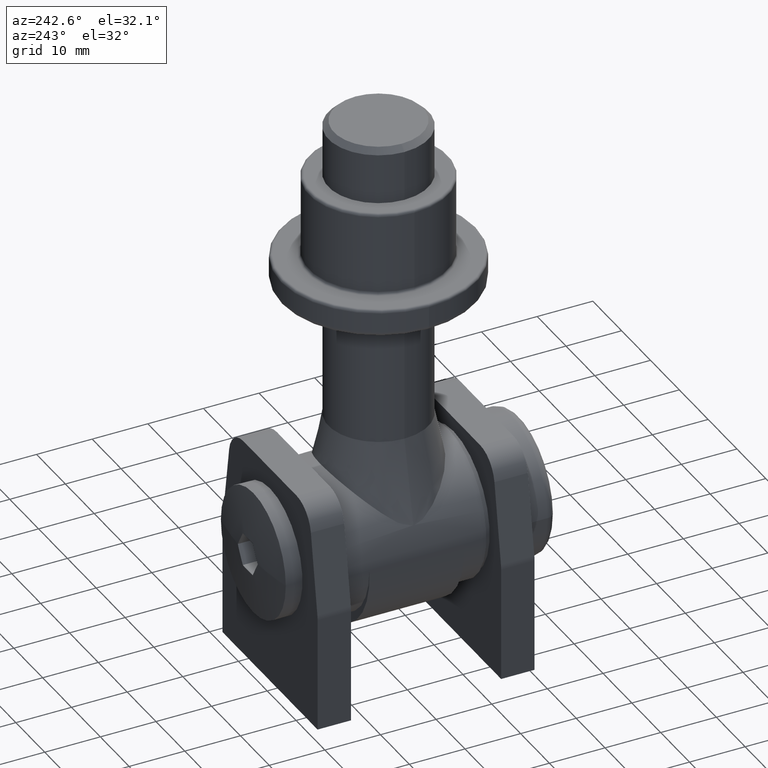
[diagram: clean part render]
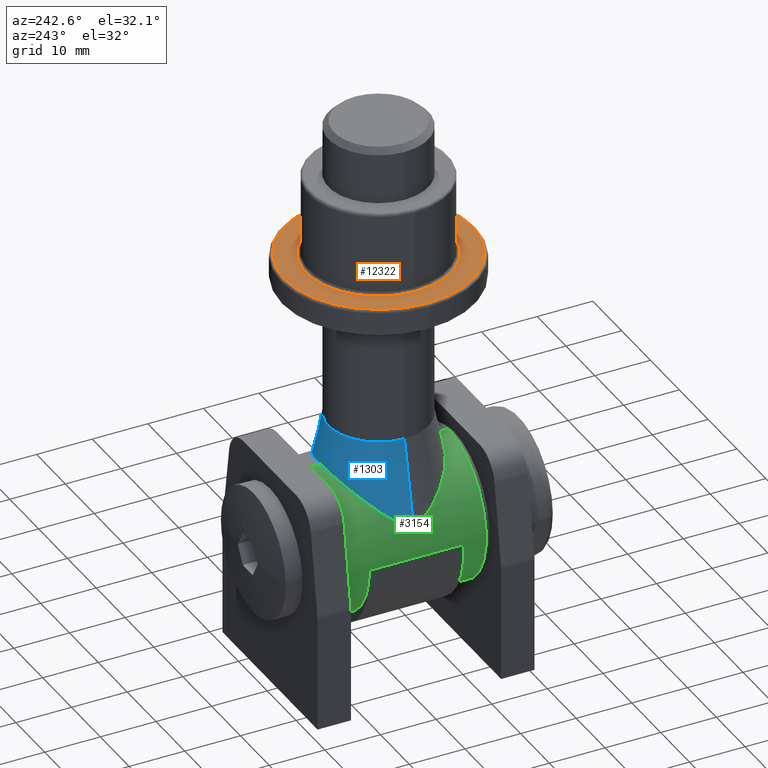
[diagram: same view with three faces highlighted in distinct colors, each labeled with its STEP entity id]
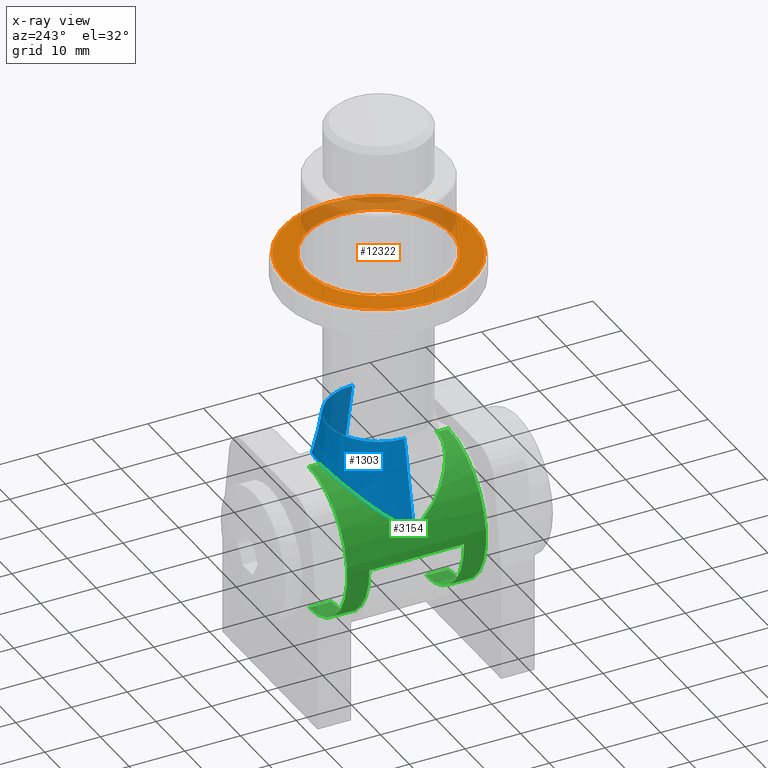
[diagram: x-ray of the same camera — body ghosted, the three highlighted faces saturated]
A machine part, auxiliary view with three faces highlighted in distinct colors.
The next image is the same camera in x-ray (body ghosted, the three faces saturated) — at least one of them is partly hidden behind the body in this view.
Their STEP definitions:

[orange] entity #12322 — the highlighted planar face has unit normal (0, 0, 1).
#330 = CARTESIAN_POINT ( 'NONE',  ( 17.00000000000000400, 0.0000000000000000000, 5.000000000000004400 ) ) ;
#1296 = CARTESIAN_POINT ( 'NONE',  ( 0.0000000000000000000, 0.0000000000000000000, 5.000000000000004400 ) ) ;
#1392 = AXIS2_PLACEMENT_3D ( 'NONE', #2784, #10298, #2669 ) ;
#1660 = DIRECTION ( 'NONE',  ( 0.0000000000000000000, 0.0000000000000000000, 1.000000000000000000 ) ) ;
#1789 = DIRECTION ( 'NONE',  ( 1.000000000000000000, 0.0000000000000000000, 0.0000000000000000000 ) ) ;
#2669 = DIRECTION ( 'NONE',  ( 1.000000000000000000, 0.0000000000000000000, -0.0000000000000000000 ) ) ;
#2784 = CARTESIAN_POINT ( 'NONE',  ( 0.0000000000000000000, 0.0000000000000000000, 5.000000000000004400 ) ) ;
#2905 = CIRCLE ( 'NONE', #11622, 17.00000000000000400 ) ;
#3436 = CIRCLE ( 'NONE', #7598, 13.00000000000000200 ) ;
#3442 = EDGE_CURVE ( 'NONE', #5131, #9874, #2905, .T. ) ;
#3497 = ORIENTED_EDGE ( 'NONE', *, *, #14237, .T. ) ;
#3849 = ORIENTED_EDGE ( 'NONE', *, *, #3442, .T. ) ;
#4452 = PLANE ( 'NONE',  #1392 ) ;
#4832 = ORIENTED_EDGE ( 'NONE', *, *, #5159, .T. ) ;
#5131 = VERTEX_POINT ( 'NONE', #330 ) ;
#5159 = EDGE_CURVE ( 'NONE', #9874, #5131, #6925, .T. ) ;
#6355 = DIRECTION ( 'NONE',  ( 1.000000000000000000, 0.0000000000000000000, 0.0000000000000000000 ) ) ;
#6809 = DIRECTION ( 'NONE',  ( 1.000000000000000000, 0.0000000000000000000, 0.0000000000000000000 ) ) ;
#6823 = EDGE_CURVE ( 'NONE', #12880, #8878, #3436, .T. ) ;
#6866 = EDGE_LOOP ( 'NONE', ( #3849, #4832 ) ) ;
#6925 = CIRCLE ( 'NONE', #12137, 17.00000000000000400 ) ;
#7532 = DIRECTION ( 'NONE',  ( -0.0000000000000000000, -0.0000000000000000000, -1.000000000000000000 ) ) ;
#7598 = AXIS2_PLACEMENT_3D ( 'NONE', #1296, #11055, #9867 ) ;
#7968 = CARTESIAN_POINT ( 'NONE',  ( 0.0000000000000000000, 0.0000000000000000000, 5.000000000000004400 ) ) ;
#8878 = VERTEX_POINT ( 'NONE', #15306 ) ;
#9867 = DIRECTION ( 'NONE',  ( 1.000000000000000000, 0.0000000000000000000, 0.0000000000000000000 ) ) ;
#9874 = VERTEX_POINT ( 'NONE', #14385 ) ;
#10040 = FACE_OUTER_BOUND ( 'NONE', #6866, .T. ) ;
#10298 = DIRECTION ( 'NONE',  ( 0.0000000000000000000, 0.0000000000000000000, 1.000000000000000000 ) ) ;
#10359 = CIRCLE ( 'NONE', #14340, 13.00000000000000200 ) ;
#10432 = CARTESIAN_POINT ( 'NONE',  ( 0.0000000000000000000, 0.0000000000000000000, 5.000000000000004400 ) ) ;
#11055 = DIRECTION ( 'NONE',  ( -0.0000000000000000000, -0.0000000000000000000, -1.000000000000000000 ) ) ;
#11622 = AXIS2_PLACEMENT_3D ( 'NONE', #7968, #11693, #1789 ) ;
#11693 = DIRECTION ( 'NONE',  ( 0.0000000000000000000, 0.0000000000000000000, 1.000000000000000000 ) ) ;
#12137 = AXIS2_PLACEMENT_3D ( 'NONE', #10432, #1660, #6809 ) ;
#12155 = EDGE_LOOP ( 'NONE', ( #15981, #3497 ) ) ;
#12322 = ADVANCED_FACE ( 'NONE', ( #10040, #13527 ), #4452, .T. ) ;
#12880 = VERTEX_POINT ( 'NONE', #15287 ) ;
#13527 = FACE_BOUND ( 'NONE', #12155, .T. ) ;
#13710 = CARTESIAN_POINT ( 'NONE',  ( 0.0000000000000000000, 0.0000000000000000000, 5.000000000000004400 ) ) ;
#14237 = EDGE_CURVE ( 'NONE', #8878, #12880, #10359, .T. ) ;
#14340 = AXIS2_PLACEMENT_3D ( 'NONE', #13710, #7532, #6355 ) ;
#14385 = CARTESIAN_POINT ( 'NONE',  ( -17.00000000000000400, 2.112515728529184900E-015, 5.000000000000004400 ) ) ;
#15287 = CARTESIAN_POINT ( 'NONE',  ( 13.00000000000000200, 0.0000000000000000000, 5.000000000000004400 ) ) ;
#15306 = CARTESIAN_POINT ( 'NONE',  ( -13.00000000000000200, 1.592040838891559300E-015, 5.000000000000004400 ) ) ;
#15981 = ORIENTED_EDGE ( 'NONE', *, *, #6823, .T. ) ;

[blue] entity #1303 — the highlighted conical surface has half-angle 12 deg.
#123 = EDGE_CURVE ( 'NONE', #9762, #574, #8620, .T. ) ;
#180 = CARTESIAN_POINT ( 'NONE',  ( 9.000000000000000000, 1.293748228990657500E-015, 19.99999999999999600 ) ) ;
#336 = CARTESIAN_POINT ( 'NONE',  ( -11.49175061079786500, 2.903089775996172700, 6.601071572575719400 ) ) ;
#391 = CARTESIAN_POINT ( 'NONE',  ( -11.61655651773590700, 2.584838584890882400, 6.377533033917743000 ) ) ;
#435 = FACE_OUTER_BOUND ( 'NONE', #1058, .T. ) ;
#443 = CARTESIAN_POINT ( 'NONE',  ( -8.893365662360226400, 6.774525724067019400, 9.844561867903211200 ) ) ;
#574 = VERTEX_POINT ( 'NONE', #1331 ) ;
#1058 = EDGE_LOOP ( 'NONE', ( #7290, #3743, #13817, #9920, #2423 ) ) ;
#1161 = CARTESIAN_POINT ( 'NONE',  ( 11.48781990896234700, 2.912459531914512100, 6.607832569976723700 ) ) ;
#1207 = AXIS2_PLACEMENT_3D ( 'NONE', #8250, #12024, #12124 ) ;
#1260 = CARTESIAN_POINT ( 'NONE',  ( 10.57680563853329900, 4.687384280959521200, 8.001171380402361400 ) ) ;
#1303 = ADVANCED_FACE ( 'NONE', ( #435 ), #9127, .T. ) ;
#1322 = CARTESIAN_POINT ( 'NONE',  ( 7.859484058657876900, 7.696969483484482000, 10.68801211823366300 ) ) ;
#1331 = CARTESIAN_POINT ( 'NONE',  ( -9.000000000000000000, 0.0000000000000000000, 19.99999999999999600 ) ) ;
#1615 = CARTESIAN_POINT ( 'NONE',  ( -7.859814488633110900, 7.696830599005054700, 10.68787478312199100 ) ) ;
#2423 = ORIENTED_EDGE ( 'NONE', *, *, #8995, .F. ) ;
#2514 = CARTESIAN_POINT ( 'NONE',  ( 11.92673454348287300, 1.571552621414711700, 5.774235112175424500 ) ) ;
#2563 = CARTESIAN_POINT ( 'NONE',  ( 6.047877226196088300, 8.906097663483297600, 11.81131012736362100 ) ) ;
#2624 = B_SPLINE_CURVE_WITH_KNOTS ( 'NONE', 3,
 ( #8750, #9137, #7840, #10384, #6564, #5491, #2763, #15164, #14038, #4137, #7794, #12739, #1615, #443, #13870, #10326, #5384, #6608, #6658, #336, #391, #5436, #2983, #10167, #4194, #6512, #8973, #10222 ),
 .UNSPECIFIED., .F., .F.,
 ( 4, 2, 2, 2, 2, 2, 2, 2, 2, 2, 2, 2, 2, 4 ),
 ( 0.05222592864754109500, 0.05466654568456969000, 0.05588685420308398700, 0.05710716272159828400, 0.05832747124011258800, 0.05954777975862688600, 0.06198839679565547300, 0.06442901383268406800, 0.06686963086971267600, 0.06808993938822696700, 0.06931024790674125700, 0.07053055642525556100, 0.07114071068451270600, 0.07175086494376985100 ),
 .UNSPECIFIED. ) ;
#2763 = CARTESIAN_POINT ( 'NONE',  ( -4.319565493271662500, 9.673706694231251300, 12.53190537982063000 ) ) ;
#2983 = CARTESIAN_POINT ( 'NONE',  ( -11.92868723471121800, 1.562855525102864900, 5.770154788472542200 ) ) ;
#3420 = VECTOR ( 'NONE', #4294, 1000.000000000000100 ) ;
#3743 = ORIENTED_EDGE ( 'NONE', *, *, #8182, .T. ) ;
#3792 = CARTESIAN_POINT ( 'NONE',  ( 0.8230408785925841200, 10.43475679127264900, 13.25000000000000400 ) ) ;
#3811 = LINE ( 'NONE', #11451, #3420 ) ;
#4137 = CARTESIAN_POINT ( 'NONE',  ( -6.047553059863945500, 8.888231756624467300, 11.79523974101254400 ) ) ;
#4194 = CARTESIAN_POINT ( 'NONE',  ( -12.05864392576899900, 0.8067804075094230400, 5.491242981476048600 ) ) ;
#4294 = DIRECTION ( 'NONE',  ( 0.2079116908177593100, 2.546183866652831100E-017, -0.9781476007338055800 ) ) ;
#4795 = CARTESIAN_POINT ( 'NONE',  ( -12.10664305115619000, 3.786254666022218900E-021, 5.384393562128570600 ) ) ;
#4942 = CARTESIAN_POINT ( 'NONE',  ( 11.83303006085650800, 1.921894070696874100, 5.966381446509473100 ) ) ;
#4991 = CARTESIAN_POINT ( 'NONE',  ( 4.314184033334060000, 9.675672551292464600, 12.53375530211281100 ) ) ;
#5037 = CARTESIAN_POINT ( 'NONE',  ( 8.890537647187622700, 6.777204848315213900, 9.847001221272719800 ) ) ;
#5089 = CARTESIAN_POINT ( 'NONE',  ( 2.797924488313849000, 10.12504310329740600, 12.95732587475329600 ) ) ;
#5384 = CARTESIAN_POINT ( 'NONE',  ( -10.57760393098527800, 4.686269550005519600, 8.000185221719110700 ) ) ;
#5436 = CARTESIAN_POINT ( 'NONE',  ( -11.83461110167774600, 1.915977937054853800, 5.963161326051015900 ) ) ;
#5491 = CARTESIAN_POINT ( 'NONE',  ( -3.952813657271866600, 9.802054703197024200, 12.65275731247150900 ) ) ;
#5867 = DIRECTION ( 'NONE',  ( -1.000000000000000000, 0.0000000000000000000, 0.0000000000000000000 ) ) ;
#6036 = EDGE_CURVE ( 'NONE', #8818, #9963, #7919, .T. ) ;
#6228 = CARTESIAN_POINT ( 'NONE',  ( 12.09645318755635300, 0.4101087223910179800, 5.407446227561047500 ) ) ;
#6377 = CARTESIAN_POINT ( 'NONE',  ( 12.05827137978807300, 0.8096099179262873400, 5.492062067574451600 ) ) ;
#6512 = CARTESIAN_POINT ( 'NONE',  ( -12.09671775895908400, 0.4062540104754608400, 5.406853268785775800 ) ) ;
#6564 = CARTESIAN_POINT ( 'NONE',  ( -3.195819190907472200, 10.02704409982448300, 12.86482580979796000 ) ) ;
#6608 = CARTESIAN_POINT ( 'NONE',  ( -11.06446719328639000, 3.819138791536556400, 7.295314102514105100 ) ) ;
#6658 = CARTESIAN_POINT ( 'NONE',  ( -11.21512296835490700, 3.521800369672998300, 7.060842358509259700 ) ) ;
#7290 = ORIENTED_EDGE ( 'NONE', *, *, #123, .F. ) ;
#7554 = CARTESIAN_POINT ( 'NONE',  ( 11.06296032631789000, 3.821975241020572500, 7.297580014072216200 ) ) ;
#7794 = CARTESIAN_POINT ( 'NONE',  ( -6.371546678343167800, 8.703777760650467600, 11.62297517426386600 ) ) ;
#7840 = CARTESIAN_POINT ( 'NONE',  ( -1.627427394574665300, 10.35436528618807400, 13.17390667386182900 ) ) ;
#7919 = B_SPLINE_CURVE_WITH_KNOTS ( 'NONE', 3,
 ( #11171, #8720, #6228, #6377, #8576, #2514, #4942, #8669, #1161, #9836, #7554, #1260, #11116, #8774, #5037, #1322, #13550, #2563, #12438, #4991, #14828, #13683, #5089, #11278, #3792, #12387 ),
 .UNSPECIFIED., .F., .F.,
 ( 4, 2, 2, 2, 2, 2, 2, 2, 2, 2, 2, 2, 4 ),
 ( 0.03266425480130214600, 0.03327555710899711400, 0.03388685941669208200, 0.03510946403208201800, 0.03633206864747195300, 0.03755467326286188900, 0.03999988249364175300, 0.04244509172442162400, 0.04489030095520149500, 0.04733551018598136000, 0.04855811480137128800, 0.04978071941676122400, 0.05222592864754109500 ),
 .UNSPECIFIED. ) ;
#8182 = EDGE_CURVE ( 'NONE', #9762, #8818, #3811, .T. ) ;
#8250 = CARTESIAN_POINT ( 'NONE',  ( 0.0000000000000000000, 0.0000000000000000000, 19.99999999999999600 ) ) ;
#8576 = CARTESIAN_POINT ( 'NONE',  ( 12.03002631820166400, 1.006849898841623500, 5.554056065950546500 ) ) ;
#8620 = CIRCLE ( 'NONE', #1207, 9.000000000000000000 ) ;
#8669 = CARTESIAN_POINT ( 'NONE',  ( 11.61282523603928900, 2.595191383297390500, 6.384402714709915800 ) ) ;
#8720 = CARTESIAN_POINT ( 'NONE',  ( 12.10664305115619200, 0.2070309658816547600, 5.384393562128571500 ) ) ;
#8750 = CARTESIAN_POINT ( 'NONE',  ( 1.622657007580528900E-015, 10.43475679127264800, 13.25000000000000200 ) ) ;
#8774 = CARTESIAN_POINT ( 'NONE',  ( 9.357436796250281600, 6.285408559409209900, 9.401824175999861300 ) ) ;
#8818 = VERTEX_POINT ( 'NONE', #9934 ) ;
#8973 = CARTESIAN_POINT ( 'NONE',  ( -12.10664305115619400, 0.2041607178623782400, 5.384393562128573200 ) ) ;
#8995 = EDGE_CURVE ( 'NONE', #574, #15480, #11495, .T. ) ;
#9127 = CONICAL_SURFACE ( 'NONE', #14059, 9.000000000000000000, 0.2094395102393195000 ) ;
#9137 = CARTESIAN_POINT ( 'NONE',  ( -0.8214951772545708900, 10.43475679127265100, 13.25000000000000500 ) ) ;
#9762 = VERTEX_POINT ( 'NONE', #180 ) ;
#9826 = CARTESIAN_POINT ( 'NONE',  ( -9.000000000000000000, 0.0000000000000000000, 19.99999999999999600 ) ) ;
#9836 = CARTESIAN_POINT ( 'NONE',  ( 11.21295659576610700, 3.526054461736721100, 7.064209928580991600 ) ) ;
#9920 = ORIENTED_EDGE ( 'NONE', *, *, #14285, .T. ) ;
#9934 = CARTESIAN_POINT ( 'NONE',  ( 12.10664305115619200, 1.748493282638719600E-015, 5.384393562128560800 ) ) ;
#9963 = VERTEX_POINT ( 'NONE', #13112 ) ;
#10167 = CARTESIAN_POINT ( 'NONE',  ( -12.03089942303414400, 1.001060367101144900, 5.552152774326419400 ) ) ;
#10222 = CARTESIAN_POINT ( 'NONE',  ( -12.10664305115619000, 3.786254666022218900E-021, 5.384393562128570600 ) ) ;
#10326 = CARTESIAN_POINT ( 'NONE',  ( -10.20679839300158400, 5.231802512468666700, 8.471859376096627900 ) ) ;
#10384 = CARTESIAN_POINT ( 'NONE',  ( -2.805369519048564800, 10.12339040397273100, 12.95576555459582100 ) ) ;
#11116 = CARTESIAN_POINT ( 'NONE',  ( 10.20373529351817500, 5.236426510614443000, 8.475830772971214300 ) ) ;
#11171 = CARTESIAN_POINT ( 'NONE',  ( 12.10664305115619200, 1.748493282638719600E-015, 5.384393562128560800 ) ) ;
#11278 = CARTESIAN_POINT ( 'NONE',  ( 1.624636226973390300, 10.35452249015881200, 13.17405625452674300 ) ) ;
#11451 = CARTESIAN_POINT ( 'NONE',  ( 9.000000000000000000, 1.102182119232617700E-015, 19.99999999999999600 ) ) ;
#11495 = LINE ( 'NONE', #9826, #13423 ) ;
#12024 = DIRECTION ( 'NONE',  ( 0.0000000000000000000, 0.0000000000000000000, 1.000000000000000000 ) ) ;
#12124 = DIRECTION ( 'NONE',  ( 1.000000000000000000, 0.0000000000000000000, 0.0000000000000000000 ) ) ;
#12387 = CARTESIAN_POINT ( 'NONE',  ( 1.622657007580528900E-015, 10.43475679127264800, 13.25000000000000200 ) ) ;
#12438 = CARTESIAN_POINT ( 'NONE',  ( 5.382153336248418200, 9.247686203966093600, 12.13151881884424700 ) ) ;
#12739 = CARTESIAN_POINT ( 'NONE',  ( -7.297235375127309400, 8.123185066940003200, 11.08257604455888800 ) ) ;
#13112 = CARTESIAN_POINT ( 'NONE',  ( 1.622657007580528900E-015, 10.43475679127264800, 13.25000000000000200 ) ) ;
#13423 = VECTOR ( 'NONE', #13430, 1000.000000000000100 ) ;
#13430 = DIRECTION ( 'NONE',  ( -0.2079116908177593100, 0.0000000000000000000, -0.9781476007338055800 ) ) ;
#13550 = CARTESIAN_POINT ( 'NONE',  ( 7.295562395751273900, 8.124911034194632000, 11.08416145667337600 ) ) ;
#13683 = CARTESIAN_POINT ( 'NONE',  ( 3.184539599339076200, 10.03008908591637800, 12.86769795924052100 ) ) ;
#13817 = ORIENTED_EDGE ( 'NONE', *, *, #6036, .T. ) ;
#13870 = CARTESIAN_POINT ( 'NONE',  ( -9.366277035828112200, 6.275266810331221900, 9.392762597439318700 ) ) ;
#14038 = CARTESIAN_POINT ( 'NONE',  ( -5.376985240004501100, 9.230539262203199900, 12.11563486939934000 ) ) ;
#14059 = AXIS2_PLACEMENT_3D ( 'NONE', #14397, #15663, #5867 ) ;
#14285 = EDGE_CURVE ( 'NONE', #9963, #15480, #2624, .T. ) ;
#14397 = CARTESIAN_POINT ( 'NONE',  ( 0.0000000000000000000, 0.0000000000000000000, 19.99999999999999600 ) ) ;
#14828 = CARTESIAN_POINT ( 'NONE',  ( 3.946418937678248400, 9.804255719160405400, 12.65482993952648400 ) ) ;
#15164 = CARTESIAN_POINT ( 'NONE',  ( -5.031655238396223400, 9.387953859221665800, 12.26334962648298600 ) ) ;
#15480 = VERTEX_POINT ( 'NONE', #4795 ) ;
#15663 = DIRECTION ( 'NONE',  ( 0.0000000000000000000, 0.0000000000000000000, -1.000000000000000000 ) ) ;

[green] entity #3154 — the highlighted cylindrical surface (partial cylindrical patch) has radius 13.25 mm, axis along (-0, -1, -0).
#49 = CARTESIAN_POINT ( 'NONE',  ( -3.198687775559332800, -10.02623938511667100, 12.86406699088285800 ) ) ;
#150 = CARTESIAN_POINT ( 'NONE',  ( 1.622657008870243300E-015, 12.50000000000000000, 13.25000000000000200 ) ) ;
#247 = EDGE_CURVE ( 'NONE', #8107, #11517, #5172, .T. ) ;
#276 = AXIS2_PLACEMENT_3D ( 'NONE', #11374, #5240, #13828 ) ;
#336 = CARTESIAN_POINT ( 'NONE',  ( -11.49175061079786500, 2.903089775996172700, 6.601071572575719400 ) ) ;
#382 = DIRECTION ( 'NONE',  ( -0.0000000000000000000, -1.000000000000000000, -0.0000000000000000000 ) ) ;
#391 = CARTESIAN_POINT ( 'NONE',  ( -11.61655651773590700, 2.584838584890882400, 6.377533033917743000 ) ) ;
#443 = CARTESIAN_POINT ( 'NONE',  ( -8.893365662360226400, 6.774525724067019400, 9.844561867903211200 ) ) ;
#467 = VECTOR ( 'NONE', #3658, 1000.000000000000000 ) ;
#540 = CARTESIAN_POINT ( 'NONE',  ( 0.0000000000000000000, 12.50000000000000000, 0.0000000000000000000 ) ) ;
#627 = EDGE_LOOP ( 'NONE', ( #15768, #2473, #713, #9008, #8556, #3760, #15219, #11543, #13070, #14472, #3065 ) ) ;
#713 = ORIENTED_EDGE ( 'NONE', *, *, #9841, .T. ) ;
#961 = DIRECTION ( 'NONE',  ( 0.0000000000000000000, 0.0000000000000000000, 1.000000000000000000 ) ) ;
#1169 = CARTESIAN_POINT ( 'NONE',  ( -0.8126159729275684900, -10.41509996114150400, 13.23140376917632800 ) ) ;
#1189 = DIRECTION ( 'NONE',  ( 0.0000000000000000000, 1.000000000000000000, -0.0000000000000000000 ) ) ;
#1385 = CARTESIAN_POINT ( 'NONE',  ( 0.0000000000000000000, -8.500000000000000000, -13.25000000000000200 ) ) ;
#1386 = DIRECTION ( 'NONE',  ( -0.0000000000000000000, -1.000000000000000000, -0.0000000000000000000 ) ) ;
#1615 = CARTESIAN_POINT ( 'NONE',  ( -7.859814488633110900, 7.696830599005054700, 10.68787478312199100 ) ) ;
#2473 = ORIENTED_EDGE ( 'NONE', *, *, #247, .F. ) ;
#2521 = CARTESIAN_POINT ( 'NONE',  ( -0.4057545363931444600, -10.43475679127265100, 13.25000000000000500 ) ) ;
#2624 = B_SPLINE_CURVE_WITH_KNOTS ( 'NONE', 3,
 ( #8750, #9137, #7840, #10384, #6564, #5491, #2763, #15164, #14038, #4137, #7794, #12739, #1615, #443, #13870, #10326, #5384, #6608, #6658, #336, #391, #5436, #2983, #10167, #4194, #6512, #8973, #10222 ),
 .UNSPECIFIED., .F., .F.,
 ( 4, 2, 2, 2, 2, 2, 2, 2, 2, 2, 2, 2, 2, 4 ),
 ( 0.05222592864754109500, 0.05466654568456969000, 0.05588685420308398700, 0.05710716272159828400, 0.05832747124011258800, 0.05954777975862688600, 0.06198839679565547300, 0.06442901383268406800, 0.06686963086971267600, 0.06808993938822696700, 0.06931024790674125700, 0.07053055642525556100, 0.07114071068451270600, 0.07175086494376985100 ),
 .UNSPECIFIED. ) ;
#2763 = CARTESIAN_POINT ( 'NONE',  ( -4.319565493271662500, 9.673706694231251300, 12.53190537982063000 ) ) ;
#2983 = CARTESIAN_POINT ( 'NONE',  ( -11.92868723471121800, 1.562855525102864900, 5.770154788472542200 ) ) ;
#3065 = ORIENTED_EDGE ( 'NONE', *, *, #14285, .F. ) ;
#3095 = EDGE_CURVE ( 'NONE', #12560, #4292, #3129, .T. ) ;
#3129 = LINE ( 'NONE', #13863, #13549 ) ;
#3154 = ADVANCED_FACE ( 'NONE', ( #12597 ), #12558, .T. ) ;
#3658 = DIRECTION ( 'NONE',  ( -0.0000000000000000000, -1.000000000000000000, -0.0000000000000000000 ) ) ;
#3751 = CARTESIAN_POINT ( 'NONE',  ( 1.622665547391102900E-015, -10.43475679127264800, 13.25000000000000200 ) ) ;
#3760 = ORIENTED_EDGE ( 'NONE', *, *, #6053, .F. ) ;
#3796 = VERTEX_POINT ( 'NONE', #9519 ) ;
#4064 = CARTESIAN_POINT ( 'NONE',  ( 0.0000000000000000000, -12.50000000000000000, -13.25000000000000200 ) ) ;
#4113 = DIRECTION ( 'NONE',  ( 0.0000000000000000000, 0.0000000000000000000, 1.000000000000000000 ) ) ;
#4137 = CARTESIAN_POINT ( 'NONE',  ( -6.047553059863945500, 8.888231756624467300, 11.79523974101254400 ) ) ;
#4194 = CARTESIAN_POINT ( 'NONE',  ( -12.05864392576899900, 0.8067804075094230400, 5.491242981476048600 ) ) ;
#4252 = CIRCLE ( 'NONE', #276, 13.25000000000000200 ) ;
#4292 = VERTEX_POINT ( 'NONE', #4064 ) ;
#4454 = AXIS2_PLACEMENT_3D ( 'NONE', #13182, #8382, #961 ) ;
#4795 = CARTESIAN_POINT ( 'NONE',  ( -12.10664305115619000, 3.786254666022218900E-021, 5.384393562128570600 ) ) ;
#4821 = CARTESIAN_POINT ( 'NONE',  ( -1.628619951296856900, -10.33525600873352700, 13.15591074295764400 ) ) ;
#4841 = CARTESIAN_POINT ( 'NONE',  ( -11.07168699399298400, -3.805288723428093000, 7.284315264579817000 ) ) ;
#4917 = DIRECTION ( 'NONE',  ( -0.0000000000000000000, -1.000000000000000000, -0.0000000000000000000 ) ) ;
#4948 = CARTESIAN_POINT ( 'NONE',  ( -11.92839697483494100, -1.564471786915114600, 5.770774725554457700 ) ) ;
#4960 = CARTESIAN_POINT ( 'NONE',  ( -12.10664305115618700, -0.2035733746244421700, 5.384393562128575900 ) ) ;
#4998 = CARTESIAN_POINT ( 'NONE',  ( -2.814202223252901400, -10.12135271185618100, 12.95384196335082500 ) ) ;
#5172 = CIRCLE ( 'NONE', #7051, 13.25000000000000200 ) ;
#5240 = DIRECTION ( 'NONE',  ( 0.0000000000000000000, 1.000000000000000000, -0.0000000000000000000 ) ) ;
#5325 = DIRECTION ( 'NONE',  ( -0.0000000000000000000, -1.000000000000000000, -0.0000000000000000000 ) ) ;
#5384 = CARTESIAN_POINT ( 'NONE',  ( -10.57760393098527800, 4.686269550005519600, 8.000185221719110700 ) ) ;
#5436 = CARTESIAN_POINT ( 'NONE',  ( -11.83461110167774600, 1.915977937054853800, 5.963161326051015900 ) ) ;
#5491 = CARTESIAN_POINT ( 'NONE',  ( -3.952813657271866600, 9.802054703197024200, 12.65275731247150900 ) ) ;
#5589 = VECTOR ( 'NONE', #1386, 1000.000000000000000 ) ;
#5645 = VERTEX_POINT ( 'NONE', #7789 ) ;
#5997 = CARTESIAN_POINT ( 'NONE',  ( 0.0000000000000000000, 12.50000000000000000, -13.25000000000000200 ) ) ;
#6053 = EDGE_CURVE ( 'NONE', #12560, #11024, #15386, .T. ) ;
#6082 = CARTESIAN_POINT ( 'NONE',  ( -6.062792856971070100, -8.897462501591984800, 11.80325034554363100 ) ) ;
#6131 = CARTESIAN_POINT ( 'NONE',  ( -2.029510768886989800, -10.27582212581316400, 13.09972678355552700 ) ) ;
#6183 = CARTESIAN_POINT ( 'NONE',  ( -5.400130037512961500, -9.239555980172445600, 12.12388915026866300 ) ) ;
#6475 = AXIS2_PLACEMENT_3D ( 'NONE', #10249, #11496, #4113 ) ;
#6512 = CARTESIAN_POINT ( 'NONE',  ( -12.09671775895908400, 0.4062540104754608400, 5.406853268785775800 ) ) ;
#6564 = CARTESIAN_POINT ( 'NONE',  ( -3.195819190907472200, 10.02704409982448300, 12.86482580979796000 ) ) ;
#6608 = CARTESIAN_POINT ( 'NONE',  ( -11.06446719328639000, 3.819138791536556400, 7.295314102514105100 ) ) ;
#6658 = CARTESIAN_POINT ( 'NONE',  ( -11.21512296835490700, 3.521800369672998300, 7.060842358509259700 ) ) ;
#7051 = AXIS2_PLACEMENT_3D ( 'NONE', #8602, #1189, #9868 ) ;
#7260 = CARTESIAN_POINT ( 'NONE',  ( -11.61956214107666900, -2.576507255824193700, 6.371999717191863900 ) ) ;
#7459 = CARTESIAN_POINT ( 'NONE',  ( -10.74868733039374600, -4.382503734710497600, 7.753013764993374600 ) ) ;
#7789 = CARTESIAN_POINT ( 'NONE',  ( 1.622657008870243300E-015, -12.50000000000000000, 13.25000000000000200 ) ) ;
#7794 = CARTESIAN_POINT ( 'NONE',  ( -6.371546678343167800, 8.703777760650467600, 11.62297517426386600 ) ) ;
#7824 = DIRECTION ( 'NONE',  ( -0.0000000000000000000, -1.000000000000000000, -0.0000000000000000000 ) ) ;
#7833 = DIRECTION ( 'NONE',  ( 0.0000000000000000000, 0.0000000000000000000, -1.000000000000000000 ) ) ;
#7840 = CARTESIAN_POINT ( 'NONE',  ( -1.627427394574665300, 10.35436528618807400, 13.17390667386182900 ) ) ;
#7862 = VECTOR ( 'NONE', #4917, 1000.000000000000000 ) ;
#8107 = VERTEX_POINT ( 'NONE', #5997 ) ;
#8326 = VERTEX_POINT ( 'NONE', #12432 ) ;
#8382 = DIRECTION ( 'NONE',  ( 0.0000000000000000000, 1.000000000000000000, -0.0000000000000000000 ) ) ;
#8540 = CARTESIAN_POINT ( 'NONE',  ( -10.20292765110521100, -5.213681878591569500, 8.458879440978837000 ) ) ;
#8556 = ORIENTED_EDGE ( 'NONE', *, *, #14140, .T. ) ;
#8583 = CARTESIAN_POINT ( 'NONE',  ( -7.298274031977630500, -8.122499500798671300, 11.08193900453688800 ) ) ;
#8602 = CARTESIAN_POINT ( 'NONE',  ( 0.0000000000000000000, 12.50000000000000000, 0.0000000000000000000 ) ) ;
#8675 = CARTESIAN_POINT ( 'NONE',  ( -7.872711115556730200, -7.686626841636107000, 10.67845796190247900 ) ) ;
#8746 = CARTESIAN_POINT ( 'NONE',  ( -12.10664305115619000, 3.786254666022218900E-021, 5.384393562128570600 ) ) ;
#8750 = CARTESIAN_POINT ( 'NONE',  ( 1.622657007580528900E-015, 10.43475679127264800, 13.25000000000000200 ) ) ;
#8815 = LINE ( 'NONE', #10882, #7862 ) ;
#8973 = CARTESIAN_POINT ( 'NONE',  ( -12.10664305115619400, 0.2041607178623782400, 5.384393562128573200 ) ) ;
#8977 = CIRCLE ( 'NONE', #4454, 13.25000000000000200 ) ;
#9008 = ORIENTED_EDGE ( 'NONE', *, *, #12716, .T. ) ;
#9038 = VECTOR ( 'NONE', #7824, 1000.000000000000000 ) ;
#9137 = CARTESIAN_POINT ( 'NONE',  ( -0.8214951772545708900, 10.43475679127265100, 13.25000000000000500 ) ) ;
#9144 = B_SPLINE_CURVE_WITH_KNOTS ( 'NONE', 3,
 ( #8746, #4960, #13558, #12205, #9791, #4948, #12343, #7260, #14620, #14834, #4841, #7459, #15984, #8540, #15879, #13442, #9935, #8675, #8583, #6082, #6183, #11083, #14673, #49, #4998, #6131, #4821, #1169, #2521, #3751 ),
 .UNSPECIFIED., .F., .F.,
 ( 4, 2, 2, 2, 2, 2, 2, 2, 2, 2, 2, 2, 2, 2, 4 ),
 ( 0.07175086494376985100, 0.07235926387035561400, 0.07296766279694137700, 0.07418446065011288800, 0.07540125850328441300, 0.07661805635645593800, 0.07783485420962744900, 0.07905165206279897400, 0.08148524776914201100, 0.08391884347548506100, 0.08635243918182809700, 0.08756923703499962200, 0.08878603488817113400, 0.09000283274134265900, 0.09121963059451418400 ),
 .UNSPECIFIED. ) ;
#9519 = CARTESIAN_POINT ( 'NONE',  ( 0.0000000000000000000, 8.500000000000000000, -13.25000000000000200 ) ) ;
#9578 = VERTEX_POINT ( 'NONE', #13727 ) ;
#9791 = CARTESIAN_POINT ( 'NONE',  ( -12.03106365642473100, -1.000147233795175100, 5.551802061100825200 ) ) ;
#9841 = EDGE_CURVE ( 'NONE', #8107, #3796, #14941, .T. ) ;
#9868 = DIRECTION ( 'NONE',  ( 0.0000000000000000000, 0.0000000000000000000, 1.000000000000000000 ) ) ;
#9935 = CARTESIAN_POINT ( 'NONE',  ( -8.907129285168011300, -6.760904764211219700, 9.832196735746872900 ) ) ;
#9963 = VERTEX_POINT ( 'NONE', #13112 ) ;
#10167 = CARTESIAN_POINT ( 'NONE',  ( -12.03089942303414400, 1.001060367101144900, 5.552152774326419400 ) ) ;
#10222 = CARTESIAN_POINT ( 'NONE',  ( -12.10664305115619000, 3.786254666022218900E-021, 5.384393562128570600 ) ) ;
#10249 = CARTESIAN_POINT ( 'NONE',  ( 0.0000000000000000000, -8.500000000000000000, 0.0000000000000000000 ) ) ;
#10326 = CARTESIAN_POINT ( 'NONE',  ( -10.20679839300158400, 5.231802512468666700, 8.471859376096627900 ) ) ;
#10384 = CARTESIAN_POINT ( 'NONE',  ( -2.805369519048564800, 10.12339040397273100, 12.95576555459582100 ) ) ;
#10387 = CARTESIAN_POINT ( 'NONE',  ( -13.25000000000000200, -8.500000000000000000, 3.816391647148975600E-014 ) ) ;
#10452 = EDGE_CURVE ( 'NONE', #15480, #9578, #9144, .T. ) ;
#10882 = CARTESIAN_POINT ( 'NONE',  ( -13.25000000000000200, 8.500000000000000000, 3.816391647148975600E-014 ) ) ;
#11024 = VERTEX_POINT ( 'NONE', #10387 ) ;
#11083 = CARTESIAN_POINT ( 'NONE',  ( -4.324523083534878700, -9.671979882943876600, 12.53027925616532600 ) ) ;
#11374 = CARTESIAN_POINT ( 'NONE',  ( 0.0000000000000000000, 8.500000000000000000, 0.0000000000000000000 ) ) ;
#11496 = DIRECTION ( 'NONE',  ( 0.0000000000000000000, 1.000000000000000000, -0.0000000000000000000 ) ) ;
#11517 = VERTEX_POINT ( 'NONE', #150 ) ;
#11543 = ORIENTED_EDGE ( 'NONE', *, *, #14470, .T. ) ;
#12163 = CARTESIAN_POINT ( 'NONE',  ( 0.0000000000000000000, 12.50000000000000000, -13.25000000000000200 ) ) ;
#12205 = CARTESIAN_POINT ( 'NONE',  ( -12.05867148929565100, -0.8060602706229292900, 5.491179273554354100 ) ) ;
#12343 = CARTESIAN_POINT ( 'NONE',  ( -11.83605501283848600, -1.910642347487917900, 5.960235438243725700 ) ) ;
#12432 = CARTESIAN_POINT ( 'NONE',  ( -13.25000000000000200, 8.500000000000000000, 3.903127820947816000E-014 ) ) ;
#12558 = CYLINDRICAL_SURFACE ( 'NONE', #15853, 13.25000000000000200 ) ;
#12560 = VERTEX_POINT ( 'NONE', #1385 ) ;
#12597 = FACE_OUTER_BOUND ( 'NONE', #627, .T. ) ;
#12716 = EDGE_CURVE ( 'NONE', #3796, #8326, #4252, .T. ) ;
#12739 = CARTESIAN_POINT ( 'NONE',  ( -7.297235375127309400, 8.123185066940003200, 11.08257604455888800 ) ) ;
#12895 = CARTESIAN_POINT ( 'NONE',  ( 1.622657008870243300E-015, 12.50000000000000000, 13.25000000000000200 ) ) ;
#13070 = ORIENTED_EDGE ( 'NONE', *, *, #13438, .F. ) ;
#13112 = CARTESIAN_POINT ( 'NONE',  ( 1.622657007580528900E-015, 10.43475679127264800, 13.25000000000000200 ) ) ;
#13182 = CARTESIAN_POINT ( 'NONE',  ( 0.0000000000000000000, -12.50000000000000000, 0.0000000000000000000 ) ) ;
#13305 = LINE ( 'NONE', #12895, #9038 ) ;
#13355 = EDGE_CURVE ( 'NONE', #11517, #9963, #14252, .T. ) ;
#13438 = EDGE_CURVE ( 'NONE', #9578, #5645, #13305, .T. ) ;
#13442 = CARTESIAN_POINT ( 'NONE',  ( -9.372671544730188500, -6.268217391244646400, 9.386422063061278500 ) ) ;
#13549 = VECTOR ( 'NONE', #5325, 1000.000000000000000 ) ;
#13558 = CARTESIAN_POINT ( 'NONE',  ( -12.09643586724653700, -0.4096467203791875900, 5.407480671316010400 ) ) ;
#13727 = CARTESIAN_POINT ( 'NONE',  ( 1.622665547391102900E-015, -10.43475679127264800, 13.25000000000000200 ) ) ;
#13828 = DIRECTION ( 'NONE',  ( 0.0000000000000000000, 0.0000000000000000000, 1.000000000000000000 ) ) ;
#13863 = CARTESIAN_POINT ( 'NONE',  ( 0.0000000000000000000, 12.50000000000000000, -13.25000000000000200 ) ) ;
#13870 = CARTESIAN_POINT ( 'NONE',  ( -9.366277035828112200, 6.275266810331221900, 9.392762597439318700 ) ) ;
#14038 = CARTESIAN_POINT ( 'NONE',  ( -5.376985240004501100, 9.230539262203199900, 12.11563486939934000 ) ) ;
#14140 = EDGE_CURVE ( 'NONE', #8326, #11024, #8815, .T. ) ;
#14252 = LINE ( 'NONE', #14729, #5589 ) ;
#14285 = EDGE_CURVE ( 'NONE', #9963, #15480, #2624, .T. ) ;
#14470 = EDGE_CURVE ( 'NONE', #4292, #5645, #8977, .T. ) ;
#14472 = ORIENTED_EDGE ( 'NONE', *, *, #10452, .F. ) ;
#14620 = CARTESIAN_POINT ( 'NONE',  ( -11.49473636965699300, -2.895535974587625500, 6.595765279161911500 ) ) ;
#14673 = CARTESIAN_POINT ( 'NONE',  ( -3.952761704679836000, -9.802022096130029300, 12.65272689729179400 ) ) ;
#14729 = CARTESIAN_POINT ( 'NONE',  ( 1.622657008870243300E-015, 12.50000000000000000, 13.25000000000000200 ) ) ;
#14834 = CARTESIAN_POINT ( 'NONE',  ( -11.22109981273814600, -3.509280058778106300, 7.051241225364576900 ) ) ;
#14941 = LINE ( 'NONE', #12163, #467 ) ;
#15164 = CARTESIAN_POINT ( 'NONE',  ( -5.031655238396223400, 9.387953859221665800, 12.26334962648298600 ) ) ;
#15219 = ORIENTED_EDGE ( 'NONE', *, *, #3095, .T. ) ;
#15386 = CIRCLE ( 'NONE', #6475, 13.25000000000000200 ) ;
#15480 = VERTEX_POINT ( 'NONE', #4795 ) ;
#15768 = ORIENTED_EDGE ( 'NONE', *, *, #13355, .F. ) ;
#15853 = AXIS2_PLACEMENT_3D ( 'NONE', #540, #382, #7833 ) ;
#15879 = CARTESIAN_POINT ( 'NONE',  ( -10.00317458352385500, -5.484136208478922500, 8.694615920750724300 ) ) ;
#15984 = CARTESIAN_POINT ( 'NONE',  ( -10.57506644990625400, -4.663593478512450700, 7.988763585860387400 ) ) ;